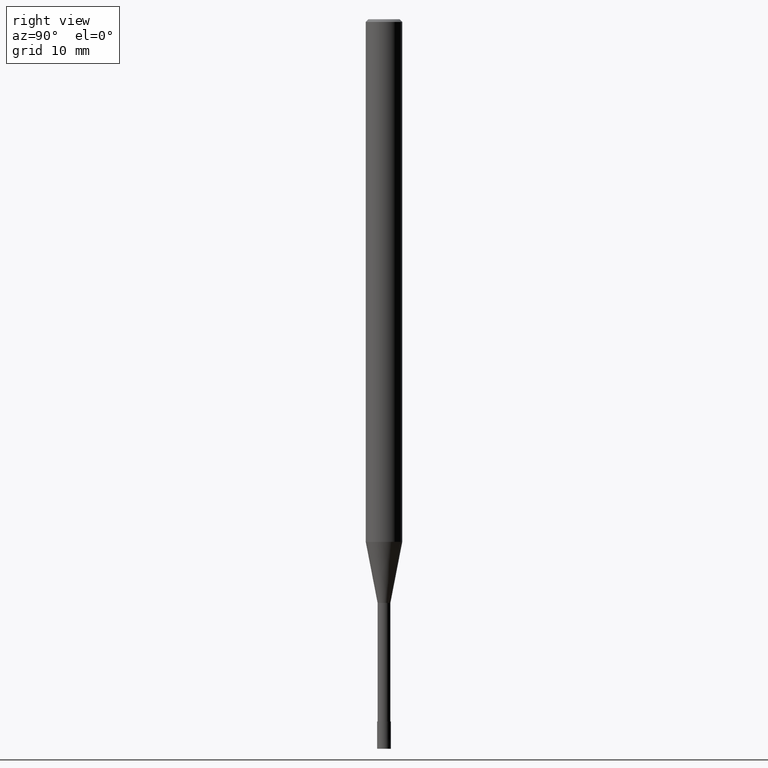
[diagram: clean part render]
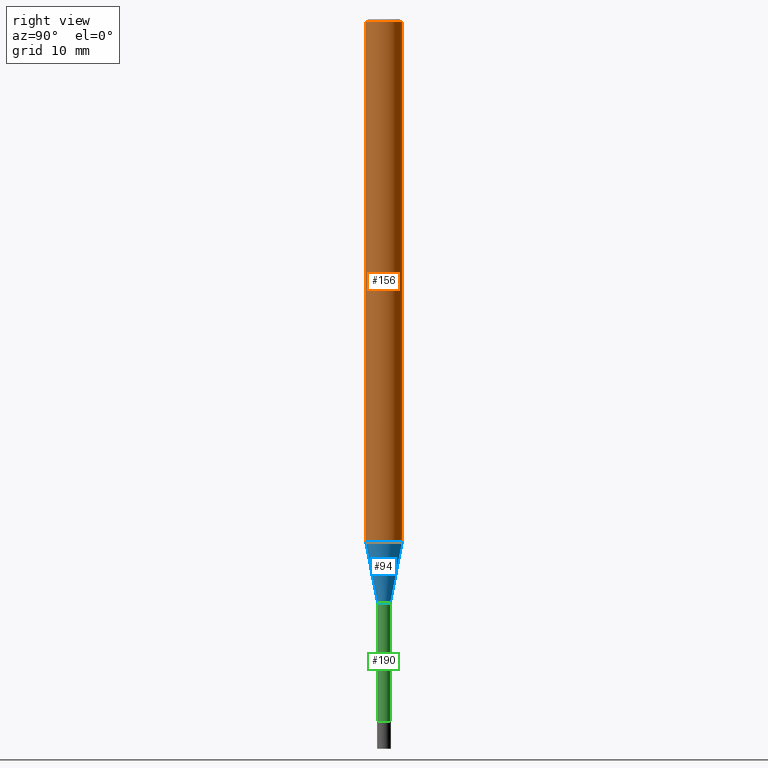
[diagram: same view with three faces highlighted in distinct colors, each labeled with its STEP entity id]
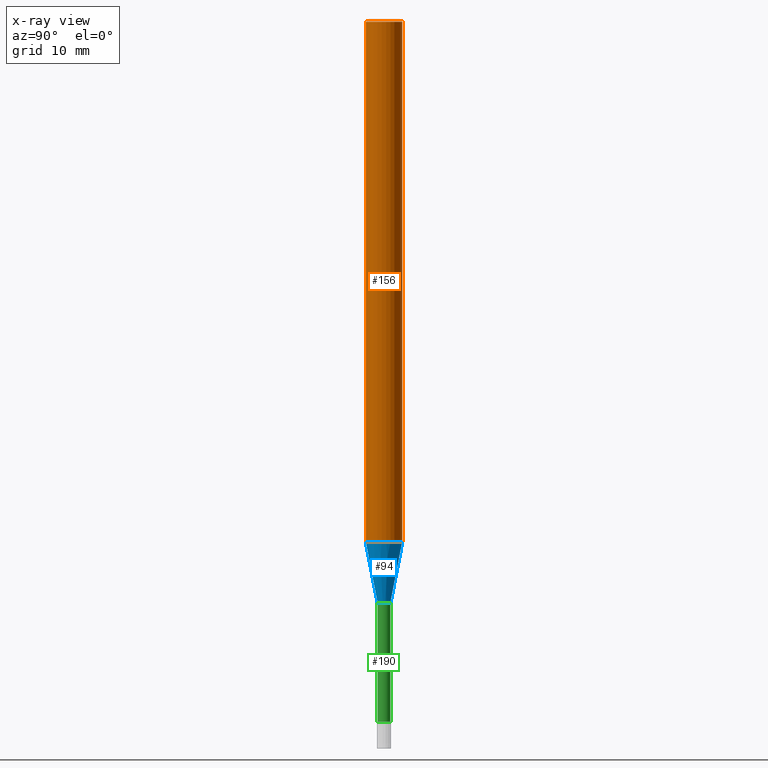
[diagram: x-ray of the same camera — body ghosted, the three highlighted faces saturated]
A machine part, right view with three faces highlighted in distinct colors.
The next image is the same camera in x-ray (body ghosted, the three faces saturated) — at least one of them is partly hidden behind the body in this view.
Their STEP definitions:

[orange] entity #156 — the highlighted cylindrical surface (edge-blend (fillet) strip) has radius 2 mm, axis along (-0, -0, 1).
#100=VERTEX_POINT('',#241);
#134=VERTEX_POINT('',#279);
#136=EDGE_CURVE('',#134,#186,#281,.T.);
#146=VERTEX_POINT('',#292);
#152=EDGE_CURVE('',#146,#100,#299,.T.);
#156=ADVANCED_FACE('',(#303),#304,.T.);
#172=EDGE_CURVE('',#186,#100,#320,.T.);
#182=EDGE_CURVE('',#146,#134,#332,.T.);
#186=VERTEX_POINT('',#336);
#241=CARTESIAN_POINT('',(2.44921270764475E-016,-2.0,-0.299999999999997));
#279=CARTESIAN_POINT('',(0.0,2.0,-57.312));
#281=CIRCLE('',#436,2.0);
#292=CARTESIAN_POINT('',(0.0,2.0,-0.299999999999997));
#299=CIRCLE('',#458,2.0);
#303=FACE_OUTER_BOUND('',#463,.T.);
#304=CYLINDRICAL_SURFACE('',#464,2.0);
#320=LINE('',#487,#488);
#332=LINE('',#502,#503);
#336=CARTESIAN_POINT('',(2.44921270764475E-016,-2.0,-57.312));
#436=AXIS2_PLACEMENT_3D('',#618,#619,#620);
#458=AXIS2_PLACEMENT_3D('',#640,#641,#642);
#463=EDGE_LOOP('',(#647,#648,#649,#650));
#464=AXIS2_PLACEMENT_3D('',#651,#652,#653);
#487=CARTESIAN_POINT('',(2.44921270764475E-016,-2.0,-28.806));
#488=VECTOR('',#662,1.0);
#502=CARTESIAN_POINT('',(-2.44921270764475E-016,2.0,-28.806));
#503=VECTOR('',#682,1.0);
#618=CARTESIAN_POINT('',(0.0,0.0,-57.312));
#619=DIRECTION('',(0.0,0.0,-1.0));
#620=DIRECTION('',(0.0,1.0,0.0));
#640=CARTESIAN_POINT('',(0.0,0.0,-0.299999999999997));
#641=DIRECTION('',(0.0,0.0,-1.0));
#642=DIRECTION('',(0.0,1.0,0.0));
#647=ORIENTED_EDGE('',*,*,#182,.F.);
#648=ORIENTED_EDGE('',*,*,#152,.T.);
#649=ORIENTED_EDGE('',*,*,#172,.F.);
#650=ORIENTED_EDGE('',*,*,#136,.F.);
#651=CARTESIAN_POINT('',(0.0,0.0,-28.806));
#652=DIRECTION('',(-0.0,-0.0,1.0));
#653=DIRECTION('',(0.0,1.0,0.0));
#662=DIRECTION('',(-0.0,-0.0,1.0));
#682=DIRECTION('',(0.0,0.0,-1.0));

[blue] entity #94 — the highlighted conical surface has half-angle 11 deg.
#94=ADVANCED_FACE('',(#232),#233,.T.);
#106=EDGE_CURVE('',#188,#140,#248,.T.);
#120=EDGE_CURVE('',#140,#192,#264,.T.);
#124=EDGE_CURVE('',#126,#192,#268,.T.);
#126=VERTEX_POINT('',#270);
#140=VERTEX_POINT('',#285);
#188=VERTEX_POINT('',#338);
#192=VERTEX_POINT('',#343);
#196=EDGE_CURVE('',#126,#188,#348,.T.);
#232=FACE_OUTER_BOUND('',#377,.T.);
#233=CONICAL_SURFACE('',#378,1.34995,0.191983983430966);
#248=CIRCLE('',#395,0.69995);
#264=LINE('',#413,#414);
#268=CIRCLE('',#420,1.99995);
#270=CARTESIAN_POINT('',(0.0,1.99995,-57.312));
#285=CARTESIAN_POINT('',(8.57163217357973E-017,-0.69995,-64.0));
#338=CARTESIAN_POINT('',(0.0,0.69995,-64.0));
#343=CARTESIAN_POINT('',(2.44915147732706E-016,-1.99995,-57.312));
#348=LINE('',#522,#523);
#377=EDGE_LOOP('',(#549,#550,#551,#552));
#378=AXIS2_PLACEMENT_3D('',#553,#554,#555);
#395=AXIS2_PLACEMENT_3D('',#573,#574,#575);
#413=CARTESIAN_POINT('',(1.65315734734252E-016,-1.34995,-60.656));
#414=VECTOR('',#597,1.0);
#420=AXIS2_PLACEMENT_3D('',#601,#602,#603);
#522=CARTESIAN_POINT('',(-1.65315734734252E-016,1.34995,-60.656));
#523=VECTOR('',#698,1.0);
#549=ORIENTED_EDGE('',*,*,#196,.F.);
#550=ORIENTED_EDGE('',*,*,#124,.T.);
#551=ORIENTED_EDGE('',*,*,#120,.F.);
#552=ORIENTED_EDGE('',*,*,#106,.F.);
#553=CARTESIAN_POINT('',(0.0,0.0,-60.656));
#554=DIRECTION('',(-0.0,-0.0,1.0));
#555=DIRECTION('',(0.0,1.0,0.0));
#573=CARTESIAN_POINT('',(0.0,0.0,-64.0));
#574=DIRECTION('',(0.0,0.0,-1.0));
#575=DIRECTION('',(0.0,1.0,0.0));
#597=DIRECTION('',(2.33663222250515E-017,-0.190806802137829,0.981627609767541));
#601=CARTESIAN_POINT('',(0.0,0.0,-57.312));
#602=DIRECTION('',(0.0,0.0,-1.0));
#603=DIRECTION('',(0.0,1.0,0.0));
#698=DIRECTION('',(2.33663222250515E-017,-0.190806802137829,-0.981627609767541));

[green] entity #190 — the highlighted cylindrical surface (edge-blend (fillet) strip) has radius 0.6999 mm, axis along (-0, -0, 1).
#104=VERTEX_POINT('',#246);
#106=EDGE_CURVE('',#188,#140,#248,.T.);
#122=EDGE_CURVE('',#166,#104,#266,.T.);
#140=VERTEX_POINT('',#285);
#162=EDGE_CURVE('',#104,#140,#310,.T.);
#166=VERTEX_POINT('',#314);
#184=EDGE_CURVE('',#188,#166,#334,.T.);
#188=VERTEX_POINT('',#338);
#190=ADVANCED_FACE('',(#340),#341,.T.);
#246=CARTESIAN_POINT('',(8.57163217357973E-017,-0.69995,-77.0));
#248=CIRCLE('',#395,0.69995);
#266=CIRCLE('',#417,0.69995);
#285=CARTESIAN_POINT('',(8.57163217357973E-017,-0.69995,-64.0));
#310=LINE('',#472,#473);
#314=CARTESIAN_POINT('',(0.0,0.69995,-77.0));
#334=LINE('',#506,#507);
#338=CARTESIAN_POINT('',(0.0,0.69995,-64.0));
#340=FACE_OUTER_BOUND('',#513,.T.);
#341=CYLINDRICAL_SURFACE('',#514,0.69995);
#395=AXIS2_PLACEMENT_3D('',#573,#574,#575);
#417=AXIS2_PLACEMENT_3D('',#598,#599,#600);
#472=CARTESIAN_POINT('',(8.57163217357973E-017,-0.69995,-70.5));
#473=VECTOR('',#657,1.0);
#506=CARTESIAN_POINT('',(-8.57163217357973E-017,0.69995,-70.5));
#507=VECTOR('',#683,1.0);
#513=EDGE_LOOP('',(#685,#686,#687,#688));
#514=AXIS2_PLACEMENT_3D('',#689,#690,#691);
#573=CARTESIAN_POINT('',(0.0,0.0,-64.0));
#574=DIRECTION('',(0.0,0.0,-1.0));
#575=DIRECTION('',(0.0,1.0,0.0));
#598=CARTESIAN_POINT('',(0.0,0.0,-77.0));
#599=DIRECTION('',(0.0,0.0,-1.0));
#600=DIRECTION('',(0.0,1.0,0.0));
#657=DIRECTION('',(-0.0,-0.0,1.0));
#683=DIRECTION('',(0.0,0.0,-1.0));
#685=ORIENTED_EDGE('',*,*,#184,.F.);
#686=ORIENTED_EDGE('',*,*,#106,.T.);
#687=ORIENTED_EDGE('',*,*,#162,.F.);
#688=ORIENTED_EDGE('',*,*,#122,.F.);
#689=CARTESIAN_POINT('',(0.0,0.0,-70.5));
#690=DIRECTION('',(-0.0,-0.0,1.0));
#691=DIRECTION('',(0.0,1.0,0.0));